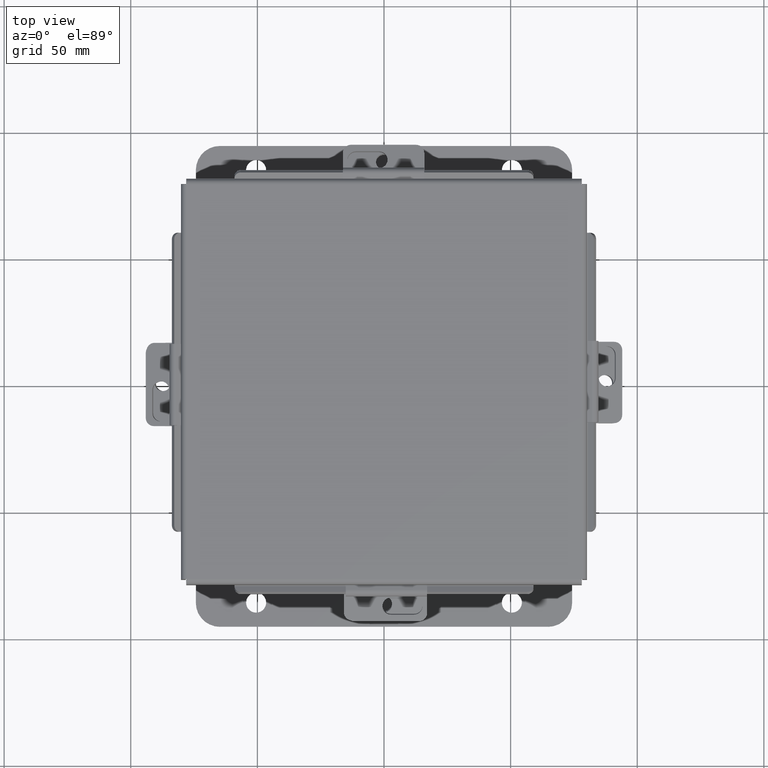
[diagram: clean part render]
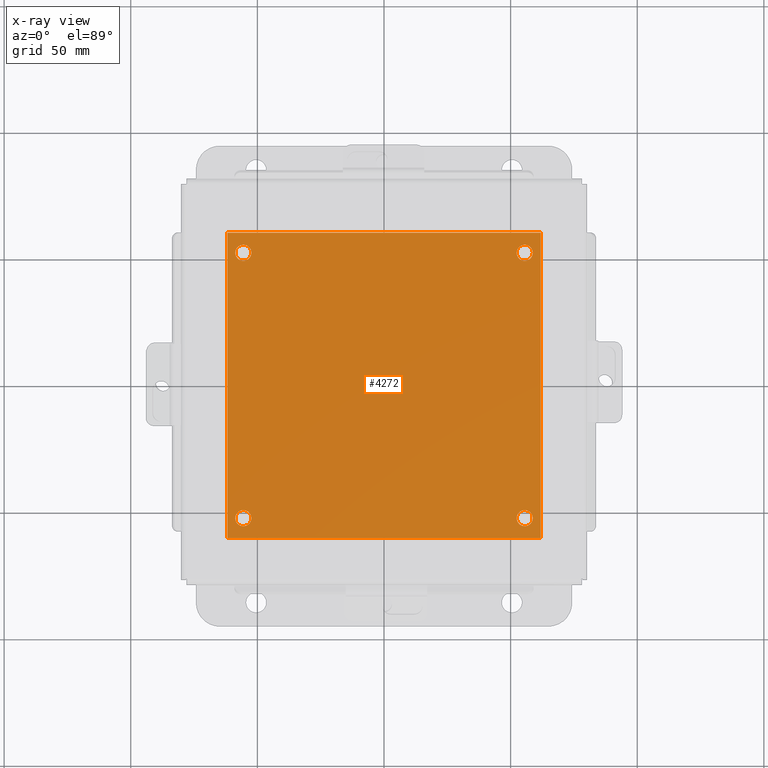
[diagram: x-ray — body ghosted, one internal face saturated and labeled with its STEP entity id]
A machine part, top view, then the same camera in x-ray: the body is ghosted and one INTERNAL B-rep face — a face not visible from any outside direction — is saturated and labeled: STEP entity #4272.
In plain terms, the highlighted planar face has unit normal (0, 0, -1).
Its self-contained STEP definition (entity closure, byte-faithful):
#5 = CIRCLE ( 'NONE', #9206, 0.1249999999999999000 ) ;
#145 = AXIS2_PLACEMENT_3D ( 'NONE', #3247, #1805, #8041 ) ;
#180 = EDGE_CURVE ( 'NONE', #9408, #1281, #2921, .T. ) ;
#433 = EDGE_CURVE ( 'NONE', #1959, #5089, #2031, .T. ) ;
#652 = CARTESIAN_POINT ( 'NONE',  ( 4.750000000000000900, 0.3120000000000009400, -0.07470000000000003000 ) ) ;
#694 = ORIENTED_EDGE ( 'NONE', *, *, #3543, .T. ) ;
#748 = CIRCLE ( 'NONE', #145, 0.1250000000000000600 ) ;
#893 = EDGE_CURVE ( 'NONE', #5089, #1959, #748, .T. ) ;
#1030 = CIRCLE ( 'NONE', #9455, 0.1250000000000000000 ) ;
#1211 = FACE_BOUND ( 'NONE', #5852, .T. ) ;
#1249 = AXIS2_PLACEMENT_3D ( 'NONE', #3433, #2963, #9381 ) ;
#1281 = VERTEX_POINT ( 'NONE', #652 ) ;
#1339 = ORIENTED_EDGE ( 'NONE', *, *, #893, .T. ) ;
#1442 = AXIS2_PLACEMENT_3D ( 'NONE', #5644, #2155, #3556 ) ;
#1522 = DIRECTION ( 'NONE',  ( -0.0000000000000000000, -0.0000000000000000000, 1.000000000000000000 ) ) ;
#1626 = DIRECTION ( 'NONE',  ( -1.000000000000000000, 0.0000000000000000000, -0.0000000000000000000 ) ) ;
#1700 = CARTESIAN_POINT ( 'NONE',  ( 4.500000000000000900, 0.3120000000000009400, -0.07470000000000003000 ) ) ;
#1805 = DIRECTION ( 'NONE',  ( -0.0000000000000000000, -0.0000000000000000000, 1.000000000000000000 ) ) ;
#1810 = CARTESIAN_POINT ( 'NONE',  ( 4.750000000000000000, 4.437999999999998800, -0.07470000000000003000 ) ) ;
#1841 = VECTOR ( 'NONE', #4363, 39.37007874015748100 ) ;
#1959 = VERTEX_POINT ( 'NONE', #5872 ) ;
#2031 = CIRCLE ( 'NONE', #7381, 0.1250000000000000600 ) ;
#2053 = CARTESIAN_POINT ( 'NONE',  ( 4.625000000000000900, 0.3120000000000009400, -0.07470000000000003000 ) ) ;
#2054 = EDGE_CURVE ( 'NONE', #3494, #2328, #4212, .T. ) ;
#2155 = DIRECTION ( 'NONE',  ( -0.0000000000000000000, -0.0000000000000000000, 1.000000000000000000 ) ) ;
#2328 = VERTEX_POINT ( 'NONE', #7128 ) ;
#2358 = DIRECTION ( 'NONE',  ( -1.000000000000000000, 0.0000000000000000000, 0.0000000000000000000 ) ) ;
#2388 = DIRECTION ( 'NONE',  ( 1.000000000000000000, 0.0000000000000000000, 0.0000000000000000000 ) ) ;
#2522 = ORIENTED_EDGE ( 'NONE', *, *, #2054, .F. ) ;
#2637 = VECTOR ( 'NONE', #3597, 39.37007874015748100 ) ;
#2645 = CARTESIAN_POINT ( 'NONE',  ( 0.0000000000000000000, 4.749999999999999100, -0.07470000000000003000 ) ) ;
#2712 = VERTEX_POINT ( 'NONE', #5912 ) ;
#2756 = LINE ( 'NONE', #6520, #2637 ) ;
#2921 = CIRCLE ( 'NONE', #1442, 0.1249999999999999000 ) ;
#2963 = DIRECTION ( 'NONE',  ( -0.0000000000000000000, -0.0000000000000000000, 1.000000000000000000 ) ) ;
#2996 = ORIENTED_EDGE ( 'NONE', *, *, #8183, .T. ) ;
#3020 = CARTESIAN_POINT ( 'NONE',  ( 4.875000000000000000, 0.0000000000000000000, -0.07470000000000003000 ) ) ;
#3214 = ORIENTED_EDGE ( 'NONE', *, *, #180, .T. ) ;
#3247 = CARTESIAN_POINT ( 'NONE',  ( 0.2500000000000020000, 0.3120000000000015000, -0.07470000000000003000 ) ) ;
#3383 = FACE_BOUND ( 'NONE', #8632, .T. ) ;
#3433 = CARTESIAN_POINT ( 'NONE',  ( 4.625000000000000000, 4.437999999999998800, -0.07470000000000003000 ) ) ;
#3494 = VERTEX_POINT ( 'NONE', #8575 ) ;
#3523 = EDGE_CURVE ( 'NONE', #2328, #5337, #2756, .T. ) ;
#3543 = EDGE_CURVE ( 'NONE', #3830, #9537, #1030, .T. ) ;
#3556 = DIRECTION ( 'NONE',  ( -1.000000000000000000, 0.0000000000000000000, 0.0000000000000000000 ) ) ;
#3588 = DIRECTION ( 'NONE',  ( -1.000000000000000000, -0.0000000000000000000, -0.0000000000000000000 ) ) ;
#3597 = DIRECTION ( 'NONE',  ( -0.0000000000000000000, -1.000000000000000000, -0.0000000000000000000 ) ) ;
#3745 = CARTESIAN_POINT ( 'NONE',  ( 4.625000000000000000, 4.437999999999998800, -0.07470000000000003000 ) ) ;
#3830 = VERTEX_POINT ( 'NONE', #5315 ) ;
#3848 = EDGE_LOOP ( 'NONE', ( #7827, #2522, #8001, #6262 ) ) ;
#3873 = CARTESIAN_POINT ( 'NONE',  ( 0.0000000000000000000, 0.0000000000000000000, -0.07470000000000003000 ) ) ;
#4129 = DIRECTION ( 'NONE',  ( -1.000000000000000000, 0.0000000000000000000, 0.0000000000000000000 ) ) ;
#4212 = LINE ( 'NONE', #2645, #5947 ) ;
#4254 = EDGE_CURVE ( 'NONE', #5337, #2712, #4539, .T. ) ;
#4272 = ADVANCED_FACE ( 'NONE', ( #1211, #3383, #5802, #5348, #9325 ), #9069, .T. ) ;
#4348 = DIRECTION ( 'NONE',  ( -0.0000000000000000000, -0.0000000000000000000, 1.000000000000000000 ) ) ;
#4363 = DIRECTION ( 'NONE',  ( 0.0000000000000000000, 1.000000000000000000, 0.0000000000000000000 ) ) ;
#4452 = DIRECTION ( 'NONE',  ( -0.0000000000000000000, -0.0000000000000000000, 1.000000000000000000 ) ) ;
#4539 = LINE ( 'NONE', #6051, #8027 ) ;
#4597 = ORIENTED_EDGE ( 'NONE', *, *, #433, .T. ) ;
#4781 = CIRCLE ( 'NONE', #1249, 0.1249999999999999000 ) ;
#5001 = EDGE_CURVE ( 'NONE', #9006, #9181, #4781, .T. ) ;
#5089 = VERTEX_POINT ( 'NONE', #7111 ) ;
#5206 = DIRECTION ( 'NONE',  ( -1.000000000000000000, 0.0000000000000000000, 0.0000000000000000000 ) ) ;
#5221 = ORIENTED_EDGE ( 'NONE', *, *, #5001, .T. ) ;
#5308 = EDGE_LOOP ( 'NONE', ( #694, #6663 ) ) ;
#5315 = CARTESIAN_POINT ( 'NONE',  ( 0.3750000000000001100, 4.437999999999998800, -0.07470000000000003000 ) ) ;
#5337 = VERTEX_POINT ( 'NONE', #9586 ) ;
#5348 = FACE_BOUND ( 'NONE', #5308, .T. ) ;
#5502 = CIRCLE ( 'NONE', #6321, 0.1249999999999999000 ) ;
#5644 = CARTESIAN_POINT ( 'NONE',  ( 4.625000000000000900, 0.3120000000000009400, -0.07470000000000003000 ) ) ;
#5802 = FACE_BOUND ( 'NONE', #8412, .T. ) ;
#5852 = EDGE_LOOP ( 'NONE', ( #4597, #1339 ) ) ;
#5872 = CARTESIAN_POINT ( 'NONE',  ( 0.3750000000000020000, 0.3120000000000015000, -0.07470000000000003000 ) ) ;
#5912 = CARTESIAN_POINT ( 'NONE',  ( 4.875000000000000000, 0.0000000000000000000, -0.07470000000000003000 ) ) ;
#5947 = VECTOR ( 'NONE', #3588, 39.37007874015748100 ) ;
#6051 = CARTESIAN_POINT ( 'NONE',  ( 0.0000000000000000000, 0.0000000000000000000, -0.07470000000000003000 ) ) ;
#6162 = DIRECTION ( 'NONE',  ( -0.0000000000000000000, -0.0000000000000000000, 1.000000000000000000 ) ) ;
#6261 = EDGE_CURVE ( 'NONE', #9537, #3830, #7147, .T. ) ;
#6262 = ORIENTED_EDGE ( 'NONE', *, *, #4254, .F. ) ;
#6321 = AXIS2_PLACEMENT_3D ( 'NONE', #3745, #4452, #5206 ) ;
#6520 = CARTESIAN_POINT ( 'NONE',  ( 0.0000000000000000000, 0.0000000000000000000, -0.07470000000000003000 ) ) ;
#6663 = ORIENTED_EDGE ( 'NONE', *, *, #6261, .T. ) ;
#6754 = AXIS2_PLACEMENT_3D ( 'NONE', #8334, #6162, #4129 ) ;
#7111 = CARTESIAN_POINT ( 'NONE',  ( 0.1250000000000019200, 0.3120000000000015000, -0.07470000000000003000 ) ) ;
#7128 = CARTESIAN_POINT ( 'NONE',  ( 0.0000000000000000000, 4.749999999999999100, -0.07470000000000003000 ) ) ;
#7147 = CIRCLE ( 'NONE', #6754, 0.1250000000000000000 ) ;
#7381 = AXIS2_PLACEMENT_3D ( 'NONE', #8166, #1522, #2358 ) ;
#7516 = DIRECTION ( 'NONE',  ( 0.0000000000000000000, 0.0000000000000000000, -1.000000000000000000 ) ) ;
#7564 = ORIENTED_EDGE ( 'NONE', *, *, #9251, .T. ) ;
#7712 = AXIS2_PLACEMENT_3D ( 'NONE', #3873, #7516, #1626 ) ;
#7827 = ORIENTED_EDGE ( 'NONE', *, *, #3523, .F. ) ;
#7868 = CARTESIAN_POINT ( 'NONE',  ( 0.1250000000000000600, 4.437999999999998800, -0.07470000000000003000 ) ) ;
#8001 = ORIENTED_EDGE ( 'NONE', *, *, #8117, .F. ) ;
#8027 = VECTOR ( 'NONE', #2388, 39.37007874015748100 ) ;
#8041 = DIRECTION ( 'NONE',  ( -1.000000000000000000, 0.0000000000000000000, 0.0000000000000000000 ) ) ;
#8060 = CARTESIAN_POINT ( 'NONE',  ( 0.2500000000000000600, 4.437999999999998800, -0.07470000000000003000 ) ) ;
#8117 = EDGE_CURVE ( 'NONE', #2712, #3494, #9460, .T. ) ;
#8166 = CARTESIAN_POINT ( 'NONE',  ( 0.2500000000000020000, 0.3120000000000015000, -0.07470000000000003000 ) ) ;
#8183 = EDGE_CURVE ( 'NONE', #9181, #9006, #5502, .T. ) ;
#8334 = CARTESIAN_POINT ( 'NONE',  ( 0.2500000000000000600, 4.437999999999998800, -0.07470000000000003000 ) ) ;
#8412 = EDGE_LOOP ( 'NONE', ( #2996, #5221 ) ) ;
#8517 = DIRECTION ( 'NONE',  ( -1.000000000000000000, 0.0000000000000000000, 0.0000000000000000000 ) ) ;
#8575 = CARTESIAN_POINT ( 'NONE',  ( 4.875000000000000000, 4.749999999999999100, -0.07470000000000003000 ) ) ;
#8632 = EDGE_LOOP ( 'NONE', ( #7564, #3214 ) ) ;
#8834 = DIRECTION ( 'NONE',  ( -1.000000000000000000, 0.0000000000000000000, 0.0000000000000000000 ) ) ;
#8902 = CARTESIAN_POINT ( 'NONE',  ( 4.500000000000000000, 4.437999999999998800, -0.07470000000000003000 ) ) ;
#9006 = VERTEX_POINT ( 'NONE', #8902 ) ;
#9069 = PLANE ( 'NONE',  #7712 ) ;
#9181 = VERTEX_POINT ( 'NONE', #1810 ) ;
#9206 = AXIS2_PLACEMENT_3D ( 'NONE', #2053, #9445, #8517 ) ;
#9251 = EDGE_CURVE ( 'NONE', #1281, #9408, #5, .T. ) ;
#9325 = FACE_OUTER_BOUND ( 'NONE', #3848, .T. ) ;
#9381 = DIRECTION ( 'NONE',  ( -1.000000000000000000, 0.0000000000000000000, 0.0000000000000000000 ) ) ;
#9408 = VERTEX_POINT ( 'NONE', #1700 ) ;
#9445 = DIRECTION ( 'NONE',  ( -0.0000000000000000000, -0.0000000000000000000, 1.000000000000000000 ) ) ;
#9455 = AXIS2_PLACEMENT_3D ( 'NONE', #8060, #4348, #8834 ) ;
#9460 = LINE ( 'NONE', #3020, #1841 ) ;
#9537 = VERTEX_POINT ( 'NONE', #7868 ) ;
#9586 = CARTESIAN_POINT ( 'NONE',  ( 0.0000000000000000000, 0.0000000000000000000, -0.07470000000000003000 ) ) ;